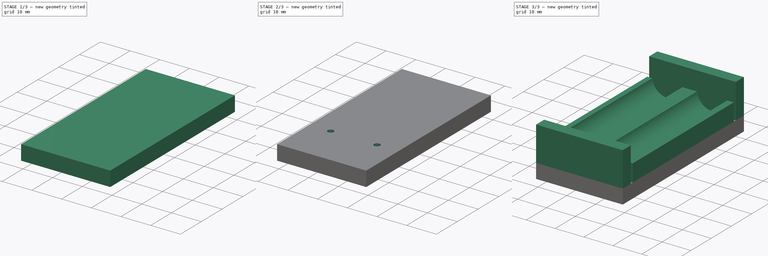
[diagram: build sequence overview — one tinted view per stage of 3, left to right]
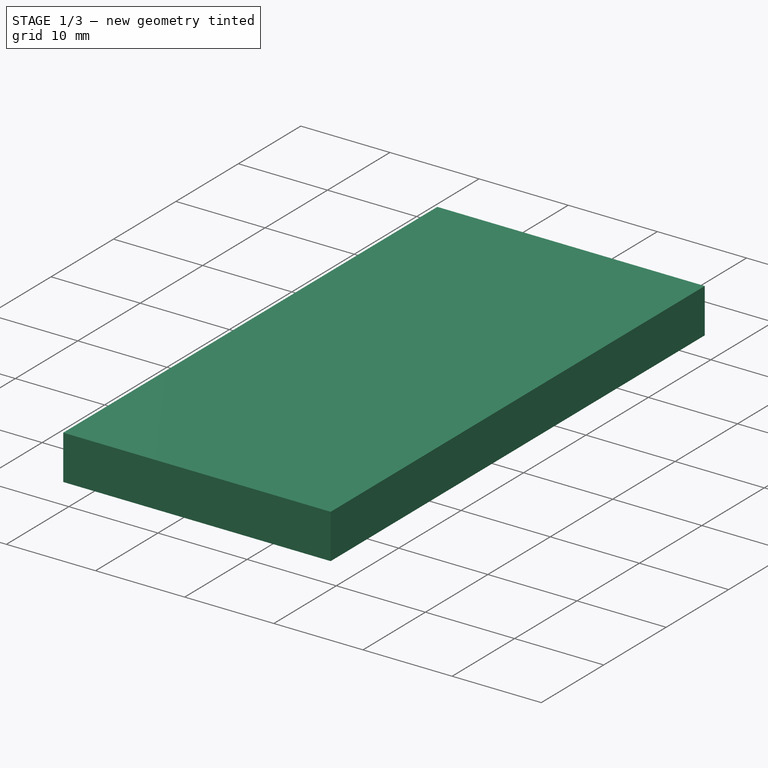
[diagram: stage 1 of 3 — iso view after this stage's code; geometry added in this stage tinted green]
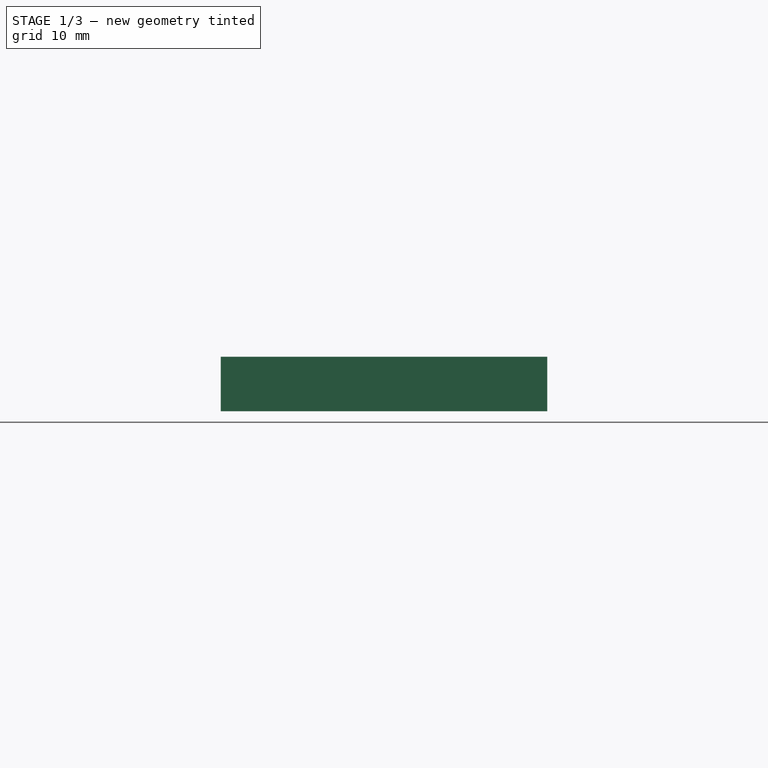
[diagram: stage 1 of 3 — front view after this stage's code; geometry added in this stage tinted green]
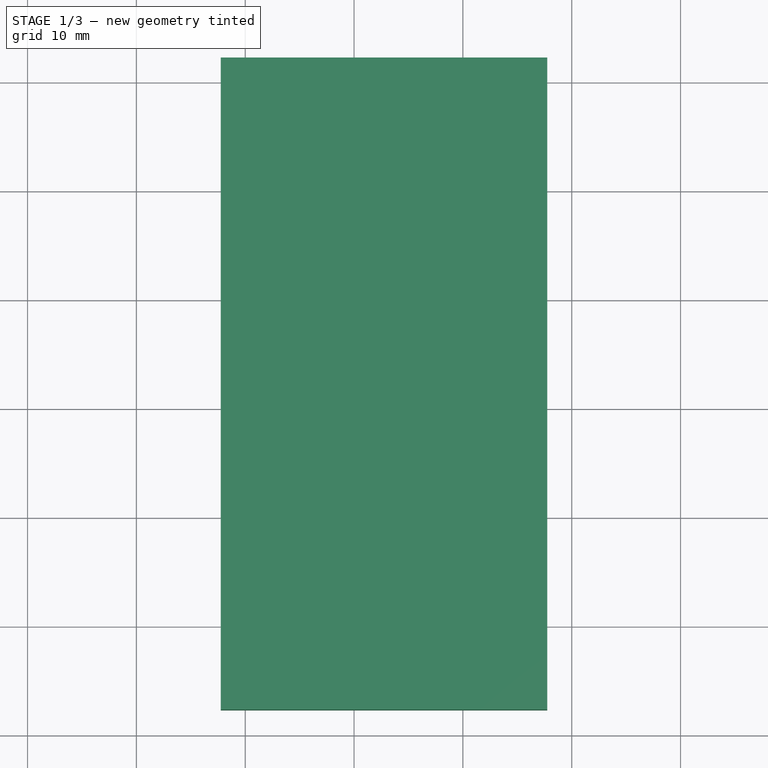
[diagram: stage 1 of 3 — top view after this stage's code; geometry added in this stage tinted green]
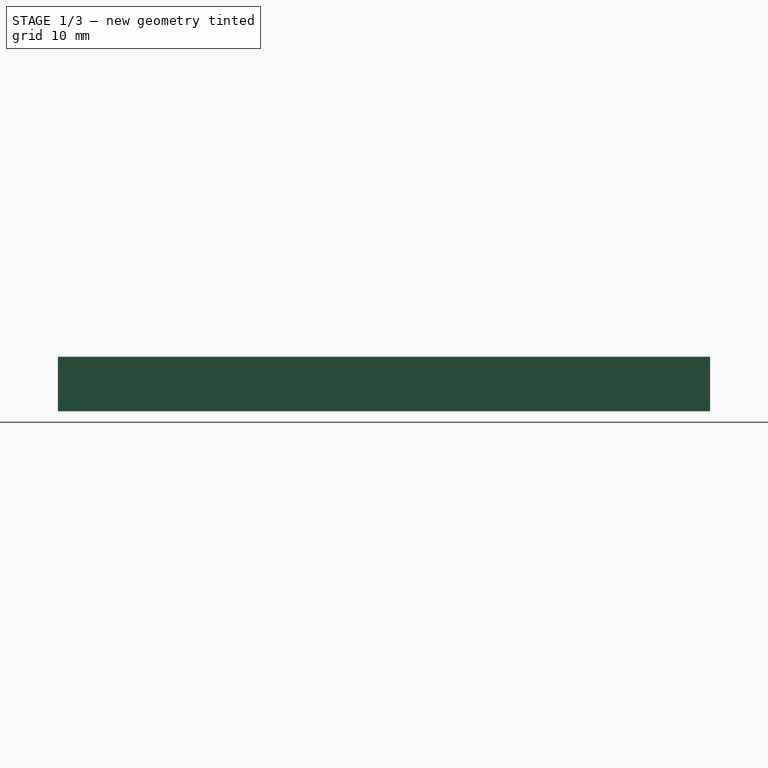
[diagram: stage 1 of 3 — right view after this stage's code; geometry added in this stage tinted green]
FCSTD DOCUMENT  (FreeCAD 0.19RUnknown)
Label: Option_1
License: All rights reserved
LicenseURL: http://en.wikipedia.org/wiki/All_rights_reserved
objects: Sketcher::SketchObject×7, PartDesign::Pad×3, PartDesign::Pocket×3, PartDesign::Plane×1, PartDesign::Body×1
note: 21 computed .brp shape members not serialized (recipe doc carries the construction recipe); baked Part::Feature solids carry a one-line shape summary decoded from their .brp

FEATURE [Sketcher::SketchObject] Sketch
  FullyConstrained = false
  MapMode = 5
  Support = -> [XY_Plane]
  expr: Constraints[74] = 4.5 / 2
  expr: Constraints[22] = 25.5 / 2
  sketch-geometry (34):
    g0: LineSegment StartX=0 StartY=0 StartZ=0 EndX=25.5 EndY=0 EndZ=0
    g1: LineSegment StartX=25.5 StartY=0 StartZ=0 EndX=25.5 EndY=-34.5 EndZ=0
    g2: LineSegment StartX=25.5 StartY=-34.5 StartZ=0 EndX=0 EndY=-34.5 EndZ=0
    g3: LineSegment StartX=0 StartY=-34.5 StartZ=0 EndX=0 EndY=0 EndZ=0
    g4: LineSegment StartX=2.25 StartY=-39.5 StartZ=0 EndX=23.25 EndY=-39.5 EndZ=0
    g5: LineSegment StartX=23.25 StartY=-39.5 StartZ=0 EndX=23.25 EndY=-55.5 EndZ=0
    g6: LineSegment StartX=23.25 StartY=-55.5 StartZ=0 EndX=2.25 EndY=-55.5 EndZ=0
    g7: LineSegment StartX=2.25 StartY=-55.5 StartZ=0 EndX=2.25 EndY=-39.5 EndZ=0
    g8: LineSegment StartX=12.75 StartY=21.168 StartZ=0 EndX=12.75 EndY=-68.8983 EndZ=0
    g9: LineSegment StartX=3.25 StartY=-41.5126 StartZ=0 EndX=3.25 EndY=-46.9971 EndZ=0
    g10: LineSegment StartX=2.76129 StartY=-40.5 StartZ=0 EndX=24.3778 EndY=-40.5 EndZ=0
    g11: Circle CenterX=4.95 CenterY=-42.2 CenterZ=0 NormalX=0 NormalY=0 NormalZ=1 AngleXU=0 Radius=1.7
    g12: Circle CenterX=20.55 CenterY=-42.2 CenterZ=0 NormalX=0 NormalY=0 NormalZ=1 AngleXU=0 Radius=1.7
    g13: LineSegment StartX=20.5 StartY=-34.5 StartZ=0 EndX=4 EndY=-34.5 EndZ=0
    g14: LineSegment StartX=4 StartY=-34.5 StartZ=0 EndX=4 EndY=-9.5 EndZ=0
    g15: LineSegment StartX=4 StartY=-9.5 StartZ=0 EndX=20.5 EndY=-9.5 EndZ=0
    g16: LineSegment StartX=20.5 StartY=-9.5 StartZ=0 EndX=20.5 EndY=-34.5 EndZ=0
    g17: LineSegment StartX=20.5 StartY=-34.5 StartZ=0 EndX=23 EndY=-34.5 EndZ=0
    g18: LineSegment StartX=23 StartY=-34.5 StartZ=0 EndX=23 EndY=-4.5 EndZ=0
    g19: LineSegment StartX=23 StartY=-4.5 StartZ=0 EndX=20.5 EndY=-4.5 EndZ=0
    g20: LineSegment StartX=20.5 StartY=-4.5 StartZ=0 EndX=20.5 EndY=-34.5 EndZ=0
    g21: LineSegment StartX=-2.25 StartY=2.25 StartZ=0 EndX=27.75 EndY=2.25 EndZ=0
    g22: LineSegment StartX=27.75 StartY=2.25 StartZ=0 EndX=27.75 EndY=-57.6794 EndZ=0
    g23: LineSegment StartX=27.75 StartY=-57.6794 StartZ=0 EndX=-2.25 EndY=-57.6794 EndZ=0
    g24: LineSegment StartX=-2.25 StartY=-57.6794 StartZ=0 EndX=-2.25 EndY=2.25 EndZ=0
    g25: LineSegment StartX=23 StartY=-4.5 StartZ=0 EndX=25.5 EndY=-4.5 EndZ=0
    g26: LineSegment StartX=25.5 StartY=-4.5 StartZ=0 EndX=25.5 EndY=-34.5 EndZ=0
    g27: LineSegment StartX=25.5 StartY=-34.5 StartZ=0 EndX=23 EndY=-34.5 EndZ=0
    g28: LineSegment StartX=23 StartY=-34.5 StartZ=0 EndX=23 EndY=-4.5 EndZ=0
    g29: LineSegment StartX=0 StartY=-34.5 StartZ=0 EndX=2.5 EndY=-34.5 EndZ=0
    g30: LineSegment StartX=2.5 StartY=-34.5 StartZ=0 EndX=2.5 EndY=-4.5 EndZ=0
    g31: LineSegment StartX=2.5 StartY=-4.5 StartZ=0 EndX=0 EndY=-4.5 EndZ=0
    g32: LineSegment StartX=0 StartY=-4.5 StartZ=0 EndX=0 EndY=-34.5 EndZ=0
    g33: LineSegment StartX=22.25 StartY=-40.1051 StartZ=0 EndX=22.25 EndY=-45.362 EndZ=0
  constraints (93):
    c: Coincident(g0,g1)
    c: Coincident(g1,g2)
    c: Coincident(g2,g3)
    c: Coincident(g3,g0)
    c: Horizontal(g0)
    c: Horizontal(g2)
    c: Vertical(g1)
    c: Vertical(g3)
    c: Distance(g0) = 25.5
    c: Coincident(g-1,g0)
    c: Distance(g3) = 34.5
    c: Coincident(g4,g5)
    c: Coincident(g5,g6)
    c: Coincident(g6,g7)
    c: Coincident(g7,g4)
    c: Horizontal(g4)
    c: Horizontal(g6)
    c: Vertical(g5)
    c: Vertical(g7)
    c: Distance(g4) = 21
    c: Distance(g7) = 16
    c: Vertical(g8)
    c: Distance(g0,g8) = 12.75
    c: Distance(g4,g8) = 10.5
    c: Vertical(g9)
    c: Distance(g9,g7) = 1
    c: Horizontal(g10)
    c: Distance(g10,g4) = 1
    c: Diameter(g11) = 3.4
    c: Tangent(g11,g10)
    c: Tangent(g11,g9)
    c: Diameter(g12) = 3.4
    c: Coincident(g13,g14)
    c: Coincident(g14,g15)
    c: Coincident(g15,g16)
    c: Coincident(g16,g13)
    c: Horizontal(g13)
    c: Horizontal(g15)
    c: Vertical(g14)
    c: Vertical(g16)
    c: PointOnObject(g13,g2)
    c: Distance(g13,g1) = 5
    c: Distance(g13,g3) = 4
    c: Distance(g15,g13) = 25
    c: Coincident(g17,g18)
    c: Coincident(g18,g19)
    c: Coincident(g19,g20)
    c: Coincident(g20,g17)
    c: Horizontal(g17)
    c: Horizontal(g19)
    c: Vertical(g18)
    c: Vertical(g20)
    c: Coincident(g17,g13)
    c: Distance(g19,g18) = 2.5
    c: Coincident(g21,g22)
    c: Coincident(g22,g23)
    c: Coincident(g23,g24)
    c: Coincident(g24,g21)
    c: Horizontal(g21)
    c: Horizontal(g23)
    c: Vertical(g22)
    c: Vertical(g24)
    c: DistanceX(g21,g21) = 30
    c: Distance(g19,g15) = 5
    c: Coincident(g25,g26)
    c: Coincident(g26,g27)
    c: Coincident(g27,g28)
    c: Coincident(g28,g25)
    c: Horizontal(g25)
    c: Horizontal(g27)
    c: Vertical(g26)
    c: Vertical(g28)
    c: Coincident(g25,g18)
    c: Coincident(g26,g1)
    c: DistanceX(g21,g0) = 2.25
    c: DistanceY(g0,g21) = 2.25
    c: Coincident(g29,g30)
    c: Coincident(g30,g31)
    c: Coincident(g31,g32)
    c: Coincident(g32,g29)
    c: Horizontal(g29)
    c: Horizontal(g31)
    c: Vertical(g30)
    c: Vertical(g32)
    c: Coincident(g29,g2)
    c: DistanceX(g31,g30) = 2.5
    c: DistanceY(g14,g30) = 5
    c: DistanceY(g4,g17) = 5
    c: Tangent(g12,g10)
    c: Vertical(g33)
    c: Tangent(g33,g12)
    c: DistanceX(g33,g4) = 1
    c: Distance(g6,g23) = 5
FEATURE [Sketcher::SketchObject] Sketch001
  ExternalGeometry = -> [Sketch]
  FullyConstrained = true
  MapMode = 5
  Support = -> [XY_Plane]
  sketch-geometry (4):
    g0: LineSegment StartX=-2.25 StartY=2.25 StartZ=0 EndX=27.75 EndY=2.25 EndZ=0
    g1: LineSegment StartX=27.75 StartY=2.25 StartZ=0 EndX=27.75 EndY=-57.6794 EndZ=0
    g2: LineSegment StartX=27.75 StartY=-57.6794 StartZ=0 EndX=-2.25 EndY=-57.6794 EndZ=0
    g3: LineSegment StartX=-2.25 StartY=-57.6794 StartZ=0 EndX=-2.25 EndY=2.25 EndZ=0
  constraints (10):
    c: Coincident(g0,g1)
    c: Coincident(g1,g2)
    c: Coincident(g2,g3)
    c: Coincident(g3,g0)
    c: Horizontal(g0)
    c: Horizontal(g2)
    c: Vertical(g1)
    c: Vertical(g3)
    c: Coincident(g0,g-6)
    c: Coincident(g1,g-5)
FEATURE [PartDesign::Pad] Pad
  Direction = (1,1,1)
  Length = 5
  Length2 = 100
  Profile = -> Sketch001
  Type = 0
FEATURE [Sketcher::SketchObject] Sketch002
  ExternalGeometry = -> [Sketch]
  FullyConstrained = true
  MapMode = 5
  Placement = pos=(0,0,0) rot=(1,0,0;3.14159rad)
  Support = -> [Pad]
  sketch-geometry (4):
    g0: LineSegment StartX=4 StartY=34.5 StartZ=0 EndX=20.5 EndY=34.5 EndZ=0
    g1: LineSegment StartX=20.5 StartY=34.5 StartZ=0 EndX=20.5 EndY=9.5 EndZ=0
    g2: LineSegment StartX=20.5 StartY=9.5 StartZ=0 EndX=4 EndY=9.5 EndZ=0
    g3: LineSegment StartX=4 StartY=9.5 StartZ=0 EndX=4 EndY=34.5 EndZ=0
  constraints (10):
    c: Coincident(g0,g1)
    c: Coincident(g1,g2)
    c: Coincident(g2,g3)
    c: Coincident(g3,g0)
    c: Horizontal(g0)
    c: Horizontal(g2)
    c: Vertical(g1)
    c: Vertical(g3)
    c: Coincident(g0,g-3)
    c: Coincident(g1,g-4)
FEATURE [PartDesign::Pocket] Pocket
  BaseFeature = -> Pad
  Length = 4
  Length2 = 100
  Profile = -> Sketch002
  Type = 0
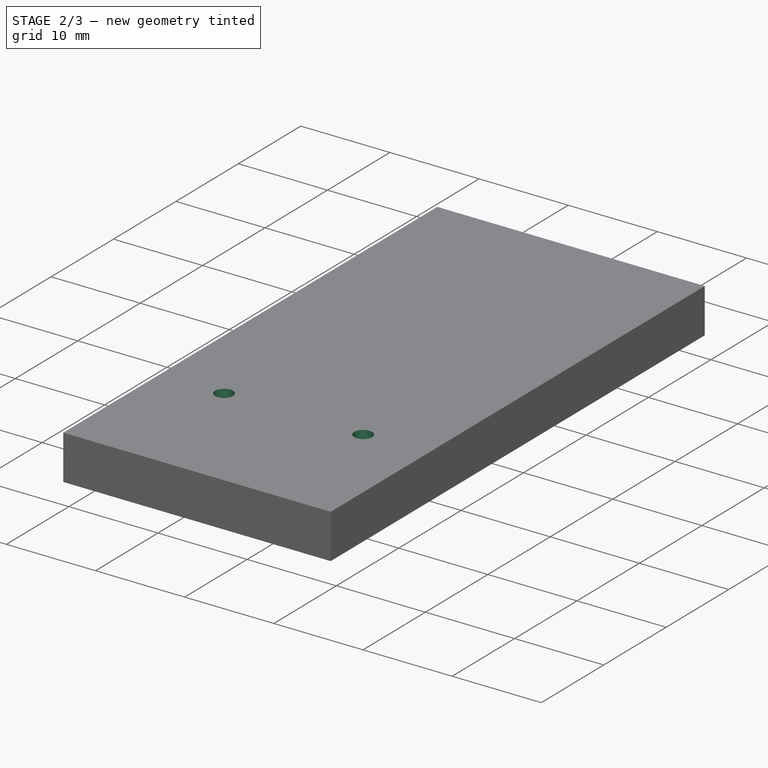
[diagram: stage 2 of 3 — iso view after this stage's code; geometry added in this stage tinted green]
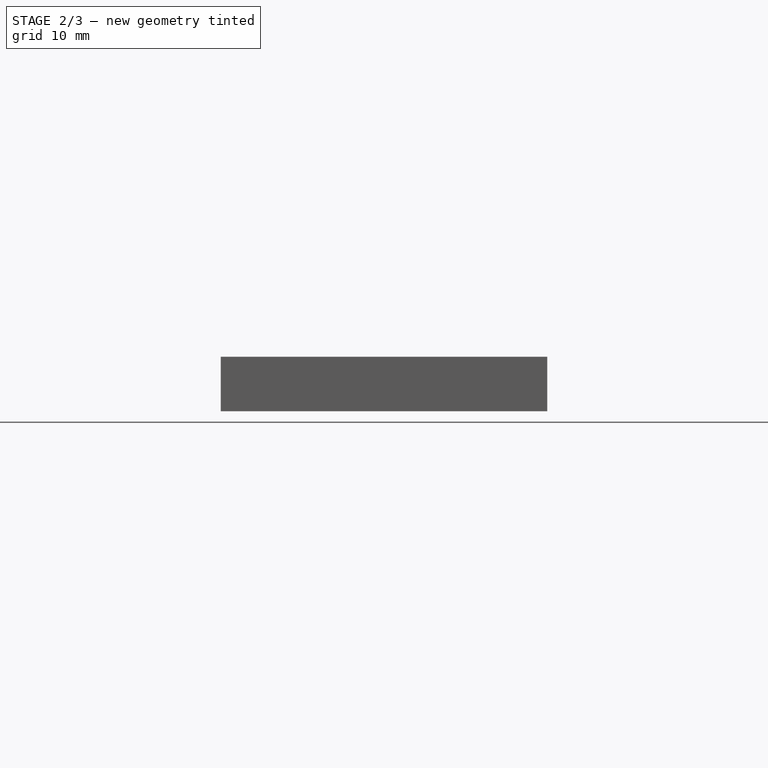
[diagram: stage 2 of 3 — front view after this stage's code; geometry added in this stage tinted green]
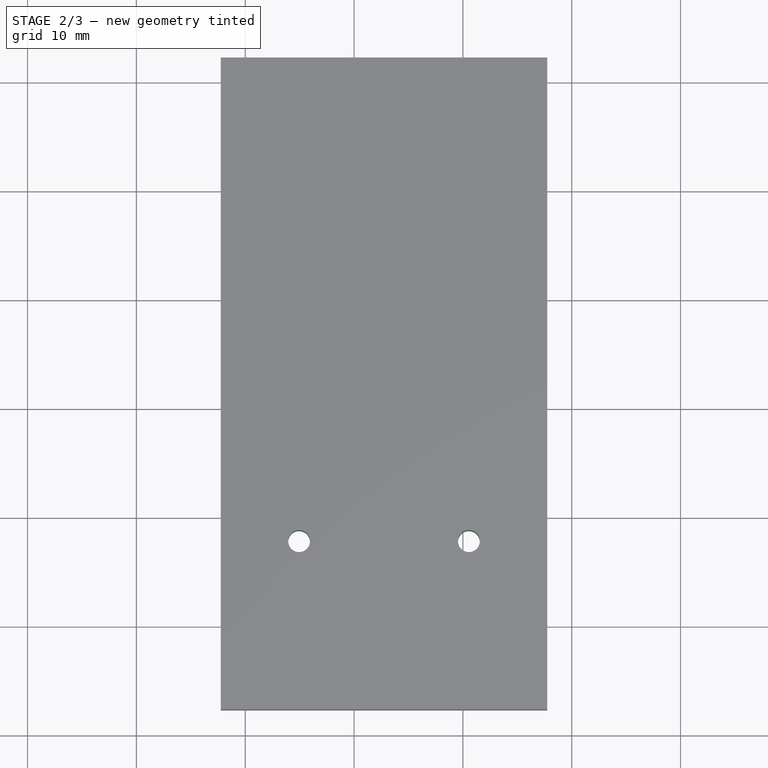
[diagram: stage 2 of 3 — top view after this stage's code; geometry added in this stage tinted green]
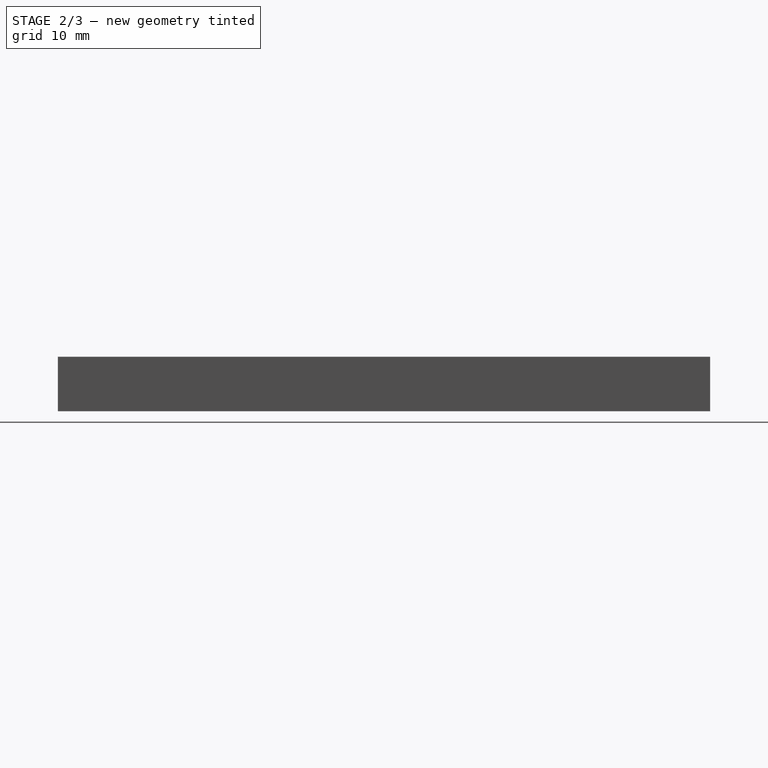
[diagram: stage 2 of 3 — right view after this stage's code; geometry added in this stage tinted green]
FEATURE [Sketcher::SketchObject] Sketch003
  ExternalGeometry = -> [Sketch]
  FullyConstrained = true
  MapMode = 5
  Placement = pos=(0,0,0) rot=(1,0,0;3.14159rad)
  Support = -> [Pocket]
  sketch-geometry (8):
    g0: LineSegment StartX=2.5 StartY=34.5 StartZ=0 EndX=0 EndY=34.5 EndZ=0
    g1: LineSegment StartX=0 StartY=34.5 StartZ=0 EndX=0 EndY=4.5 EndZ=0
    g2: LineSegment StartX=0 StartY=4.5 StartZ=0 EndX=2.5 EndY=4.5 EndZ=0
    g3: LineSegment StartX=2.5 StartY=4.5 StartZ=0 EndX=2.5 EndY=34.5 EndZ=0
    g4: LineSegment StartX=23 StartY=34.5 StartZ=0 EndX=25.5 EndY=34.5 EndZ=0
    g5: LineSegment StartX=25.5 StartY=34.5 StartZ=0 EndX=25.5 EndY=4.5 EndZ=0
    g6: LineSegment StartX=25.5 StartY=4.5 StartZ=0 EndX=23 EndY=4.5 EndZ=0
    g7: LineSegment StartX=23 StartY=4.5 StartZ=0 EndX=23 EndY=34.5 EndZ=0
  constraints (20):
    c: Coincident(g0,g1)
    c: Coincident(g1,g2)
    c: Coincident(g2,g3)
    c: Coincident(g3,g0)
    c: Horizontal(g0)
    c: Horizontal(g2)
    c: Vertical(g1)
    c: Vertical(g3)
    c: Coincident(g0,g-6)
    c: Coincident(g1,g-5)
    c: Coincident(g4,g5)
    c: Coincident(g5,g6)
    c: Coincident(g6,g7)
    c: Coincident(g7,g4)
    c: Horizontal(g4)
    c: Horizontal(g6)
    c: Vertical(g5)
    c: Vertical(g7)
    c: Coincident(g4,g-3)
    c: Coincident(g5,g-4)
FEATURE [PartDesign::Pocket] Pocket001
  BaseFeature = -> Pocket
  Length = 2
  Length2 = 100
  Profile = -> Sketch003
  Type = 0
FEATURE [Sketcher::SketchObject] Sketch004
  ExternalGeometry = -> [Sketch]
  FullyConstrained = false
  MapMode = 5
  Placement = pos=(0,0,0) rot=(1,0,0;3.14159rad)
  Support = -> [Pocket001]
  sketch-geometry (2):
    g0: Circle CenterX=4.95 CenterY=42.2 CenterZ=0 NormalX=0 NormalY=0 NormalZ=1 AngleXU=0 Radius=1
    g1: Circle CenterX=20.55 CenterY=42.2 CenterZ=0 NormalX=0 NormalY=0 NormalZ=1 AngleXU=0 Radius=1
  constraints (3):
    c: Coincident(g1,g-3)
    c: Radius(g1) = 1
    c: Radius(g0) = 1
FEATURE [PartDesign::Pocket] Pocket002
  BaseFeature = -> Pocket001
  Length = 5
  Length2 = 100
  Profile = -> Sketch004
  Type = 0
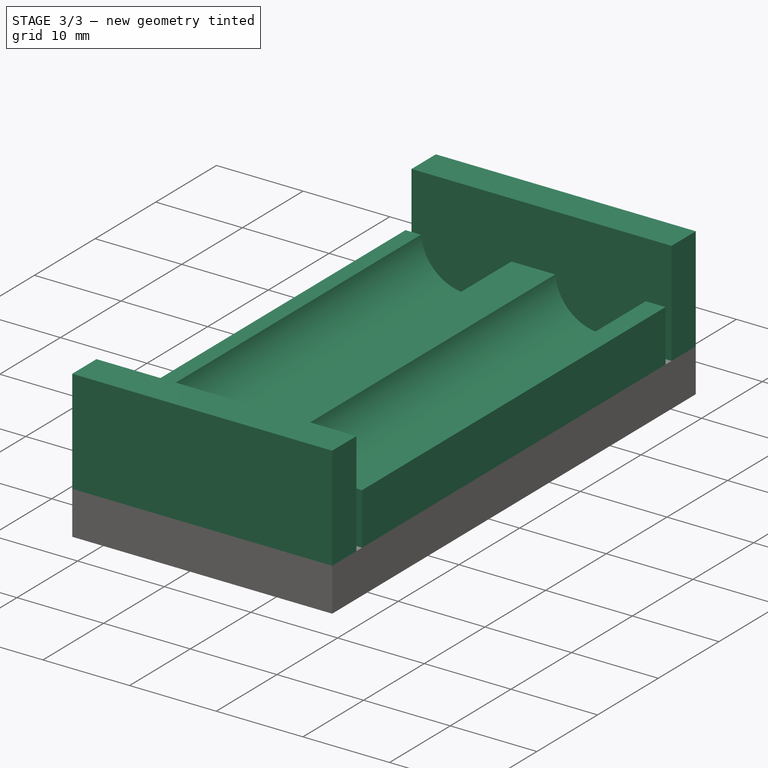
[diagram: stage 3 of 3 — iso view after this stage's code; geometry added in this stage tinted green]
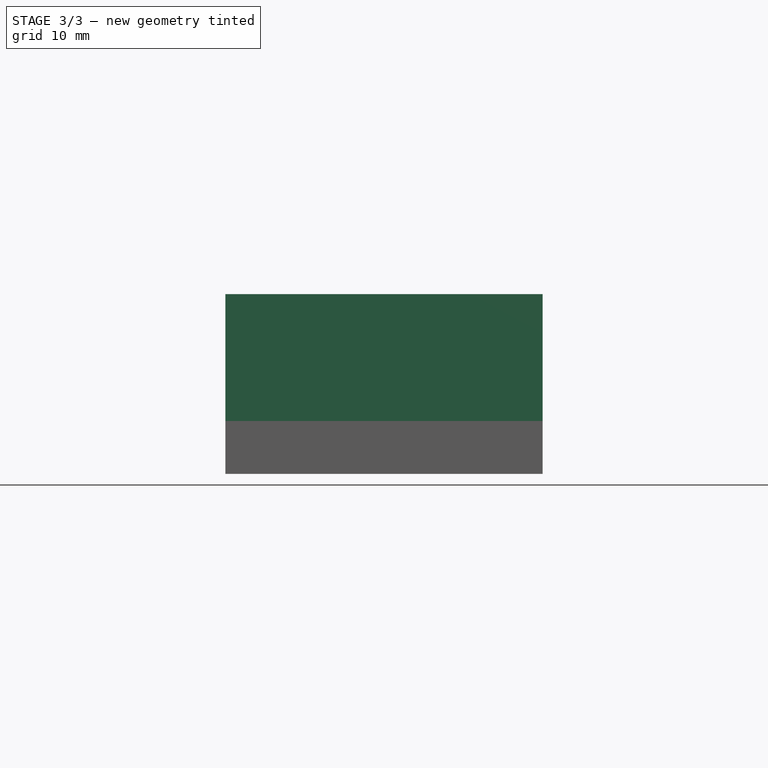
[diagram: stage 3 of 3 — front view after this stage's code; geometry added in this stage tinted green]
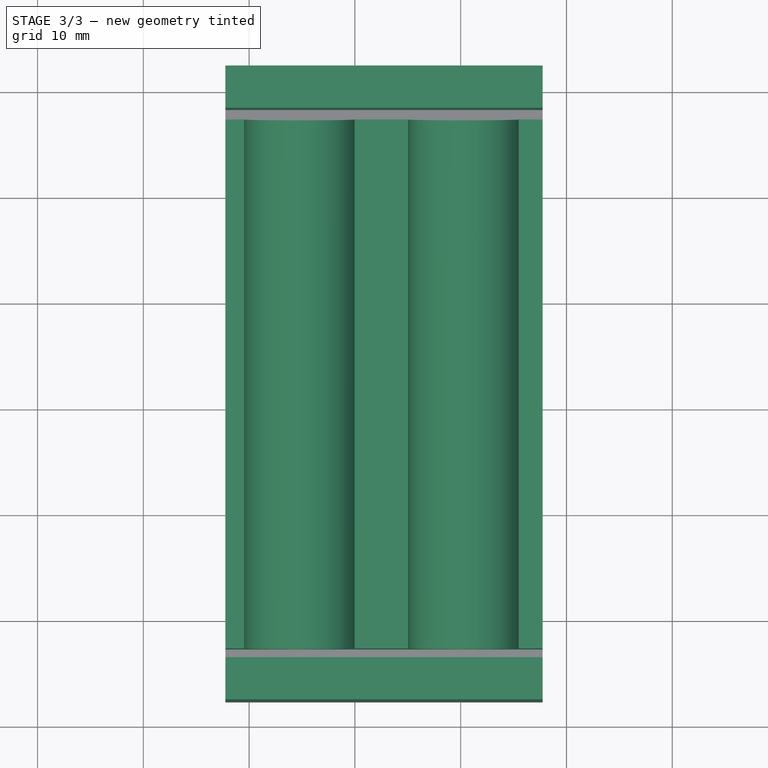
[diagram: stage 3 of 3 — top view after this stage's code; geometry added in this stage tinted green]
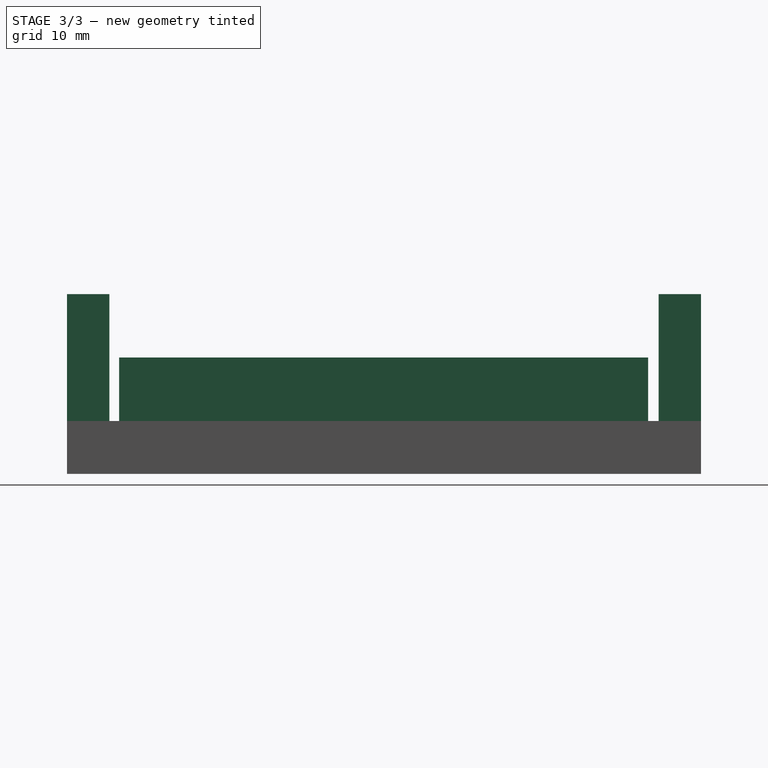
[diagram: stage 3 of 3 — right view after this stage's code; geometry added in this stage tinted green]
FEATURE [Sketcher::SketchObject] Sketch005
  ExternalGeometry = -> [Pocket002]
  FullyConstrained = true
  MapMode = 5
  Placement = pos=(0,0,5) rot=(0,0,1;0rad)
  Support = -> [Pocket002]
  sketch-geometry (8):
    g0: LineSegment StartX=-2.25 StartY=-57.6794 StartZ=0 EndX=27.75 EndY=-57.6794 EndZ=0
    g1: LineSegment StartX=27.75 StartY=-57.6794 StartZ=0 EndX=27.75 EndY=-53.6794 EndZ=0
    g2: LineSegment StartX=27.75 StartY=-53.6794 StartZ=0 EndX=-2.25 EndY=-53.6794 EndZ=0
    g3: LineSegment StartX=-2.25 StartY=-53.6794 StartZ=0 EndX=-2.25 EndY=-57.6794 EndZ=0
    g4: LineSegment StartX=-2.25 StartY=2.25 StartZ=0 EndX=27.75 EndY=2.25 EndZ=0
    g5: LineSegment StartX=27.75 StartY=2.25 StartZ=0 EndX=27.75 EndY=-1.75 EndZ=0
    g6: LineSegment StartX=27.75 StartY=-1.75 StartZ=0 EndX=-2.25 EndY=-1.75 EndZ=0
    g7: LineSegment StartX=-2.25 StartY=-1.75 StartZ=0 EndX=-2.25 EndY=2.25 EndZ=0
  constraints (20):
    c: Coincident(g0,g1)
    c: Coincident(g1,g2)
    c: Coincident(g2,g3)
    c: Coincident(g3,g0)
    c: Horizontal(g2)
    c: Vertical(g1)
    c: Vertical(g3)
    c: Coincident(g0,g-4)
    c: Coincident(g4,g5)
    c: Coincident(g5,g6)
    c: Coincident(g6,g7)
    c: Coincident(g7,g4)
    c: Horizontal(g6)
    c: Vertical(g5)
    c: Vertical(g7)
    c: Coincident(g4,g-3)
    c: Coincident(g4,g-3)
    c: Distance(g6,g4) = 4
    c: Coincident(g0,g-4)
    c: Distance(g3) = 4
FEATURE [PartDesign::Pad] Pad001
  BaseFeature = -> Pocket002
  Direction = (1,1,1)
  Length = 12
  Length2 = 100
  Profile = -> Sketch005
  Type = 0
FEATURE [PartDesign::Plane] DatumPlane
  AttachmentOffset = pos=(-1,-16,1) rot=(0,0,1;0rad)
  Length = 63.0213
  MapMode = 5
  Placement = pos=(-1,-2.75,-16) rot=(1,0,0;1.5708rad)
  ResizeMode = 0
  Support = -> [Pad001]
  Width = 60.2713
FEATURE [Sketcher::SketchObject] Sketch006
  ExternalGeometry = -> [Pad001]
  FullyConstrained = false
  MapMode = 5
  Placement = pos=(-1,-2.75,-16) rot=(1,0,0;1.5708rad)
  Support = -> [DatumPlane]
  sketch-geometry (9):
    g0: ArcOfCircle CenterX=5.75 CenterY=27.5 CenterZ=0 NormalX=0 NormalY=0 NormalZ=1 AngleXU=0 Radius=5.25 StartAngle=3.23698 EndAngle=6.1878
    g1: LineSegment StartX=-1.78554 StartY=22.25 StartZ=0 EndX=9.65371 EndY=22.25 EndZ=0
    g2: ArcOfCircle CenterX=21.25 CenterY=27.5 CenterZ=0 NormalX=0 NormalY=0 NormalZ=1 AngleXU=0 Radius=5.25 StartAngle=3.23698 EndAngle=6.1878
    g3: LineSegment StartX=-1.25 StartY=27 StartZ=0 EndX=0.523864 EndY=27 EndZ=0
    g4: LineSegment StartX=-1.25 StartY=27 StartZ=0 EndX=-1.25 EndY=21 EndZ=0
    g5: LineSegment StartX=-1.25 StartY=21 StartZ=0 EndX=28.75 EndY=21 EndZ=0
    g6: LineSegment StartX=28.75 StartY=27 StartZ=0 EndX=28.75 EndY=21 EndZ=0
    g7: LineSegment StartX=26.4761 StartY=27 StartZ=0 EndX=28.75 EndY=27 EndZ=0
    g8: LineSegment StartX=10.9761 StartY=27 StartZ=0 EndX=16.0239 EndY=27 EndZ=0
  constraints (28):
    c: DistanceY(g-3,g-3) = 0
    c: Distance(g0,g-3) = 6.5
    c: Distance(g-4) = 20000
    c: Distance(g0,g-4) = 7
    c: Diameter(g0) = 10.5
    c: Horizontal(g1)
    c: Tangent(g1,g0)
    c: Diameter(g2) = 10.5
    c: Distance(g2,g-5) = 7.5
    c: Distance(g2,g-3) = 6.5
    c: Horizontal(g3)
    c: Coincident(g4,g3)
    c: PointOnObject(g4,g-3)
    c: Coincident(g5,g4)
    c: Coincident(g6,g7)
    c: Coincident(g6,g5)
    c: PointOnObject(g5,g-3)
    c: PointOnObject(g5,g-5)
    c: PointOnObject(g7,g-5)
    c: PointOnObject(g3,g-4)
    c: PointOnObject(g4,g-4)
    c: Distance(g4,g3) = 6
    c: Coincident(g8,g2)
    c: Coincident(g7,g2)
    c: Tangent(g3,g7)
    c: Coincident(g3,g0)
    c: Coincident(g8,g0)
    c: Tangent(g3,g8)
FEATURE [PartDesign::Pad] Pad002
  BaseFeature = -> Pad001
  Direction = (1,1,1)
  Length = 50
  Length2 = 100
  Profile = -> Sketch006
  Type = 0
FEATURE [PartDesign::Body] Body
  Group = -> [Sketch,Sketch001,Pad,Sketch002,Pocket,Sketch003,Pocket001,Sketch004,Pocket002,Sketch005,Pad001,DatumPlane,Sketch006,Pad002]
  Origin = -> Origin
  Tip = -> Pad002
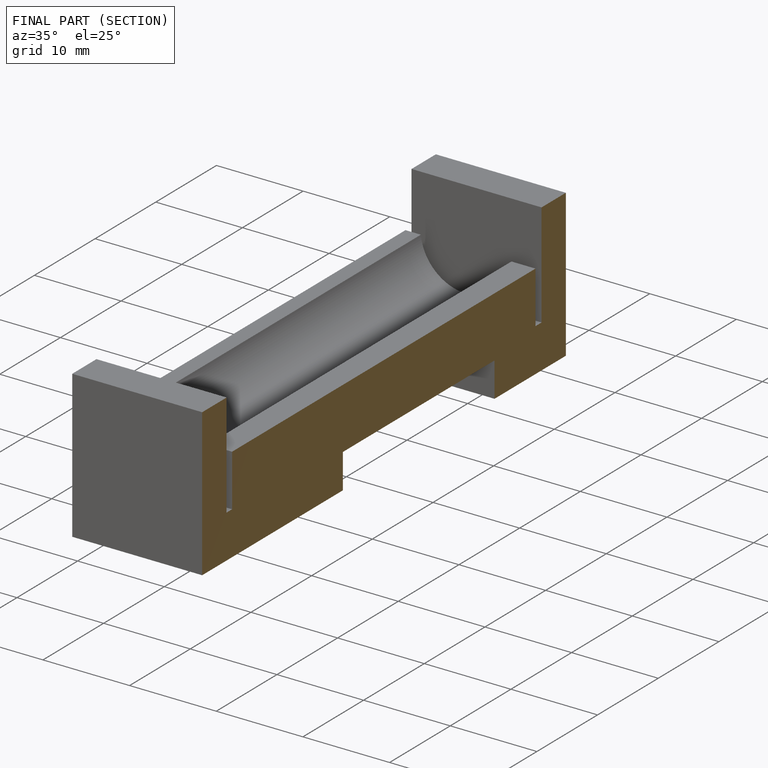
[diagram: finished part — half-section view (interior)]
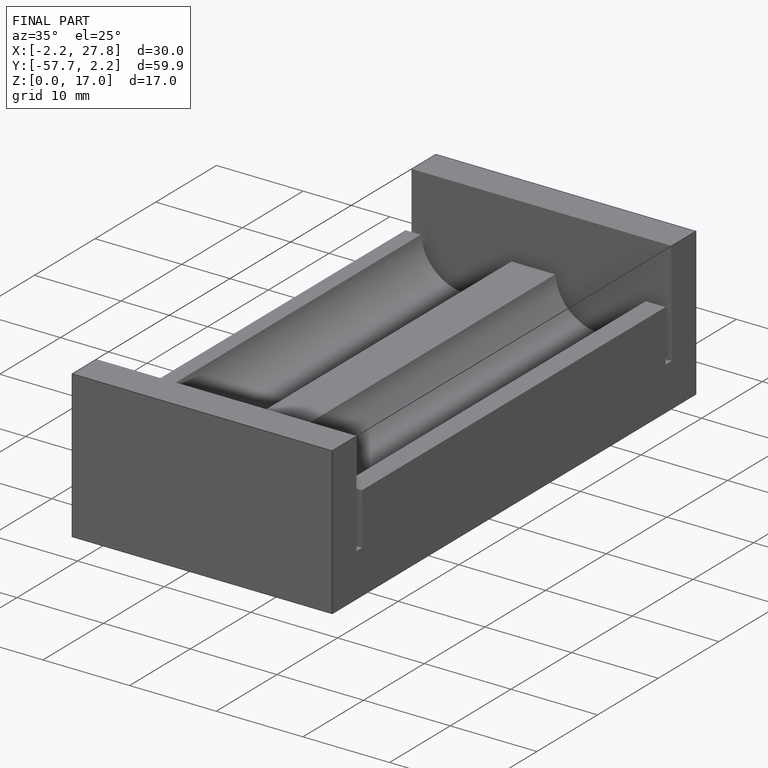
[diagram: finished part — iso view with bounding-box wireframe]
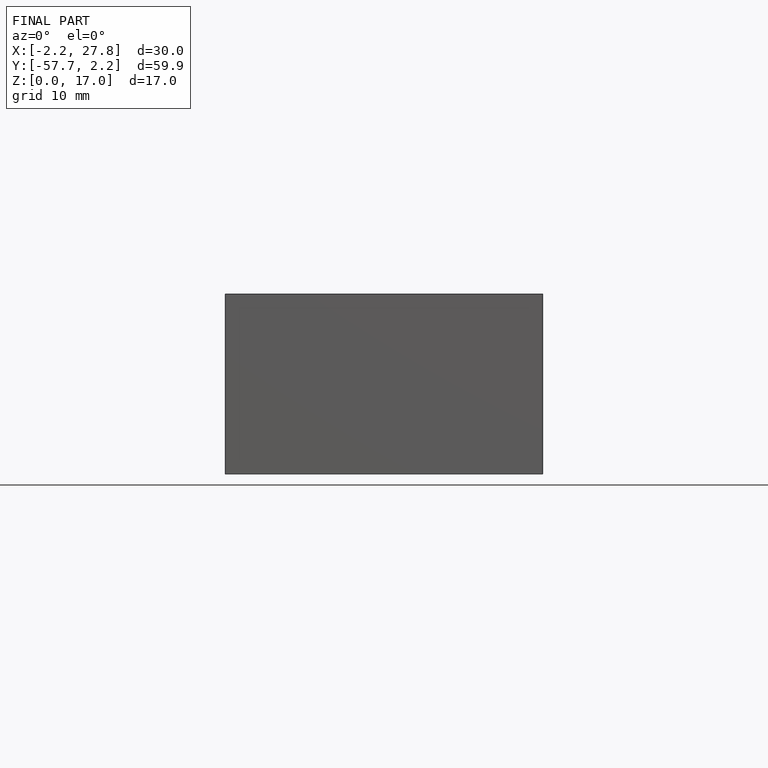
[diagram: finished part — front view with bounding-box wireframe]
